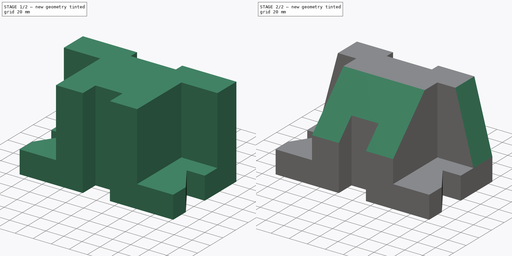
[diagram: build sequence overview — one tinted view per stage of 2, left to right]
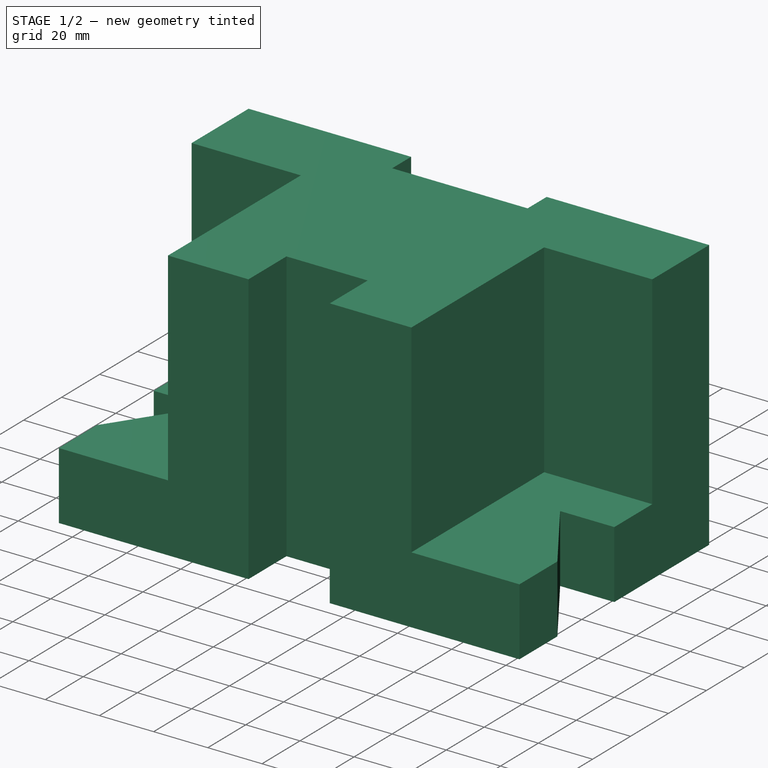
[diagram: stage 1 of 2 — iso view after this stage's code; geometry added in this stage tinted green]
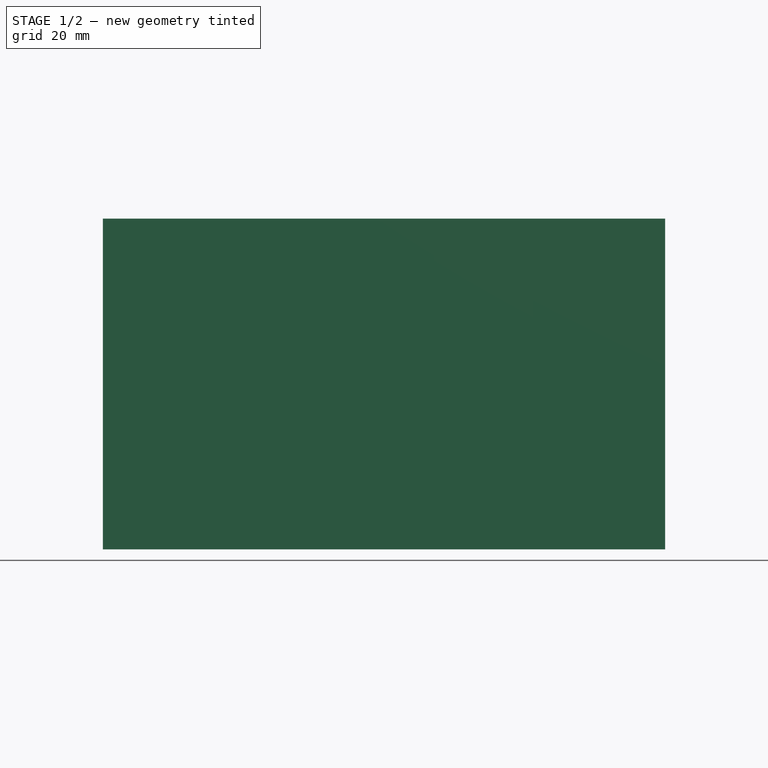
[diagram: stage 1 of 2 — front view after this stage's code; geometry added in this stage tinted green]
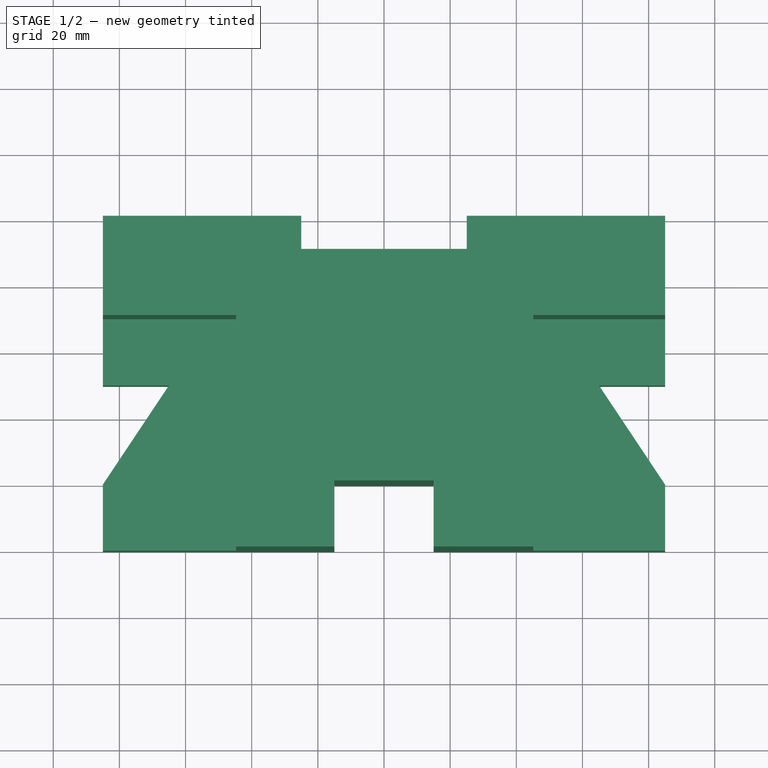
[diagram: stage 1 of 2 — top view after this stage's code; geometry added in this stage tinted green]
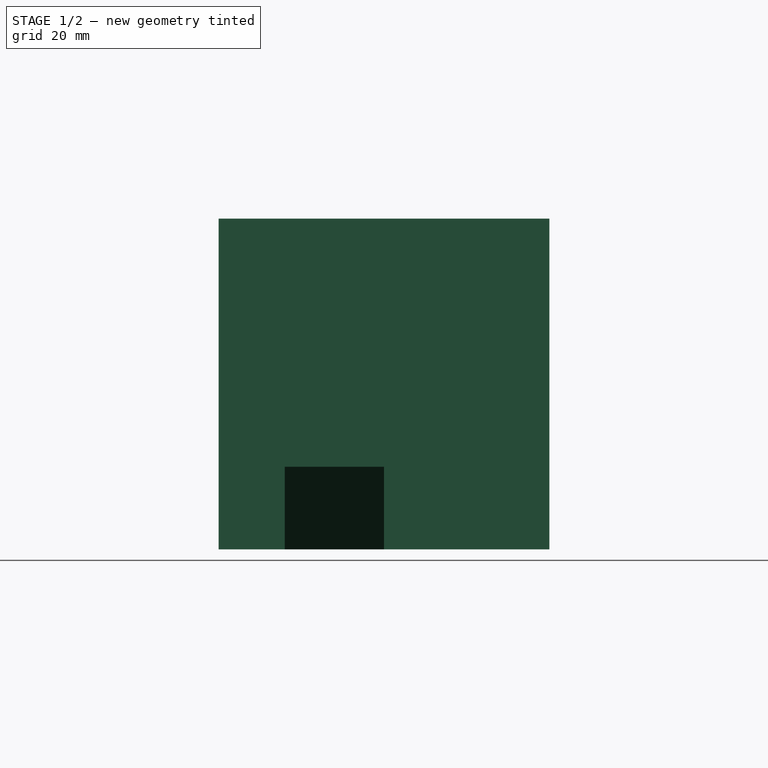
[diagram: stage 1 of 2 — right view after this stage's code; geometry added in this stage tinted green]
FCSTD DOCUMENT  (FreeCAD 0.16R)
Label: Ejer final 17
License: All rights reserved
LicenseURL: http://en.wikipedia.org/wiki/All_rights_reserved
objects: Sketcher::SketchObject×5, PartDesign::Pocket×3, PartDesign::Pad×1
note: 13 computed .brp shape members not serialized (recipe doc carries the construction recipe); baked Part::Feature solids carry a one-line shape summary decoded from their .brp

FEATURE [Sketcher::SketchObject] Sketch
  sketch-geometry (18):
    g0: LineSegment StartX=-85 StartY=0 StartZ=0 EndX=-25 EndY=0 EndZ=0
    g1: LineSegment StartX=-25 StartY=0 StartZ=0 EndX=-25 EndY=-10 EndZ=0
    g2: LineSegment StartX=-25 StartY=-10 StartZ=0 EndX=25 EndY=-10 EndZ=0
    g3: LineSegment StartX=25 StartY=-10 StartZ=0 EndX=25 EndY=0 EndZ=0
    g4: LineSegment StartX=25 StartY=0 StartZ=0 EndX=85 EndY=0 EndZ=0
    g5: LineSegment StartX=85 StartY=0 StartZ=0 EndX=85 EndY=-50 EndZ=0
    g6: LineSegment StartX=85 StartY=-50 StartZ=0 EndX=65 EndY=-50 EndZ=0
    g7: LineSegment StartX=65 StartY=-50 StartZ=0 EndX=85 EndY=-80 EndZ=0
    g8: LineSegment StartX=85 StartY=-80 StartZ=0 EndX=85 EndY=-100 EndZ=0
    g9: LineSegment StartX=85 StartY=-100 StartZ=0 EndX=15 EndY=-100 EndZ=0
    g10: LineSegment StartX=15 StartY=-100 StartZ=0 EndX=15 EndY=-80 EndZ=0
    g11: LineSegment StartX=15 StartY=-80 StartZ=0 EndX=-15 EndY=-80 EndZ=0
    g12: LineSegment StartX=-15 StartY=-80 StartZ=0 EndX=-15 EndY=-100 EndZ=0
    g13: LineSegment StartX=-15 StartY=-100 StartZ=0 EndX=-85 EndY=-100 EndZ=0
    g14: LineSegment StartX=-85 StartY=-100 StartZ=0 EndX=-85 EndY=-80 EndZ=0
    g15: LineSegment StartX=-85 StartY=-80 StartZ=0 EndX=-65 EndY=-50 EndZ=0
    g16: LineSegment StartX=-65 StartY=-50 StartZ=0 EndX=-85 EndY=-50 EndZ=0
    g17: LineSegment StartX=-85 StartY=-50 StartZ=0 EndX=-85 EndY=0 EndZ=0
  constraints (53):
    c: PointOnObject(g0,g-1)
    c: Horizontal(g0)
    c: Coincident(g0,g1)
    c: Vertical(g1)
    c: Coincident(g1,g2)
    c: Horizontal(g2)
    c: Coincident(g2,g3)
    c: PointOnObject(g3,g-1)
    c: Coincident(g3,g4)
    c: Horizontal(g4)
    c: Coincident(g4,g5)
    c: Vertical(g5)
    c: Coincident(g5,g6)
    c: Horizontal(g6)
    c: Coincident(g6,g7)
    c: Coincident(g7,g8)
    c: Coincident(g8,g9)
    c: Horizontal(g9)
    c: Coincident(g9,g10)
    c: Vertical(g10)
    c: Coincident(g10,g11)
    c: Horizontal(g11)
    c: Coincident(g11,g12)
    c: Vertical(g12)
    c: Coincident(g12,g13)
    c: Horizontal(g13)
    c: Coincident(g13,g14)
    c: Vertical(g14)
    c: Coincident(g14,g15)
    c: Coincident(g15,g16)
    c: Horizontal(g16)
    c: Coincident(g16,g17)
    c: Coincident(g17,g0)
    c: Vertical(g17)
    c: DistanceX(g13,g13) = 70
    c: DistanceX(g9,g9) = 70
    c: DistanceX(g11,g11) = 30
    c: DistanceY(g10,g10) = 20
    c: DistanceY(g14,g14) = 20
    c: Vertical(g8)
    c: DistanceY(g8,g8) = 20
    c: DistanceX(g16,g16) = 20
    c: DistanceX(g6,g6) = 20
    c: DistanceY(g14,g16) = 30
    c: DistanceY(g7,g5) = 30
    c: DistanceY(g17,g17) = 50
    c: DistanceX(g0,g0) = 60
    c: DistanceX(g4,g4) = 60
    c: DistanceX(g2,g2) = 50
    c: DistanceY(g3,g3) = 10
    c: Symmetric(g13,g8,g-2)
    c: Symmetric(g16,g5,g-2)
    c: Vertical(g3)
FEATURE [PartDesign::Pad] Pad
  Length = 100
  Length2 = 100
  Sketch = -> Sketch
  Type = 0
FEATURE [Sketcher::SketchObject] Sketch001
  Placement = pos=(0,0,100) rot=(0,0,1;0rad)
  Support = -> Pad [Face20]
FEATURE [Sketcher::SketchObject] Sketch002
  ExternalGeometry = -> [Pad]
  Placement = pos=(0,0,100) rot=(0,0,1;0rad)
  Support = -> Pad [Face20]
  sketch-geometry (12):
    g0: LineSegment [constr] StartX=-14.7042 StartY=-100 StartZ=0 EndX=-44.7042 EndY=-100 EndZ=0
    g1: LineSegment [constr] StartX=15.1044 StartY=-100 StartZ=0 EndX=45.1044 EndY=-100 EndZ=0
    g2: LineSegment [constr] StartX=85 StartY=0 StartZ=0 EndX=85 EndY=-30 EndZ=0
    g3: LineSegment [constr] StartX=-85 StartY=0 StartZ=0 EndX=-85 EndY=-30 EndZ=0
    g4: LineSegment StartX=45.1044 StartY=-124.726 StartZ=0 EndX=106.617 EndY=-124.726 EndZ=0
    g5: LineSegment StartX=106.617 StartY=-124.726 StartZ=0 EndX=106.617 EndY=-30 EndZ=0
    g6: LineSegment StartX=106.617 StartY=-30 StartZ=0 EndX=45.1044 EndY=-30 EndZ=0
    g7: LineSegment StartX=45.1044 StartY=-30 StartZ=0 EndX=45.1044 EndY=-124.726 EndZ=0
    g8: LineSegment StartX=-44.7042 StartY=-121.374 StartZ=0 EndX=-96.2217 EndY=-121.374 EndZ=0
    g9: LineSegment StartX=-96.2217 StartY=-121.374 StartZ=0 EndX=-96.2217 EndY=-30 EndZ=0
    g10: LineSegment StartX=-96.2217 StartY=-30 StartZ=0 EndX=-44.7042 EndY=-30 EndZ=0
    g11: LineSegment StartX=-44.7042 StartY=-30 StartZ=0 EndX=-44.7042 EndY=-121.374 EndZ=0
  constraints (29):
    c: Horizontal(g1)
    c: DistanceX(g1,g1) = 30
    c: DistanceX(g0,g0) = 30
    c: Coincident(g2,g-4)
    c: Vertical(g2)
    c: Coincident(g3,g-3)
    c: Vertical(g3)
    c: DistanceY(g3,g3) = 30
    c: DistanceY(g2,g2) = 30
    c: Coincident(g4,g5)
    c: Coincident(g5,g6)
    c: Coincident(g6,g7)
    c: Coincident(g7,g4)
    c: Horizontal(g4)
    c: Horizontal(g6)
    c: Vertical(g5)
    c: Vertical(g7)
    c: Coincident(g8,g9)
    c: Coincident(g9,g10)
    c: Coincident(g10,g11)
    c: Coincident(g11,g8)
    c: Horizontal(g8)
    c: Horizontal(g10)
    c: Vertical(g9)
    c: Vertical(g11)
    c: PointOnObject(g3,g10)
    c: PointOnObject(g0,g11)
    c: PointOnObject(g2,g6)
    c: PointOnObject(g1,g7)
FEATURE [PartDesign::Pocket] Pocket
  Length = 75
  Sketch = -> Sketch002
  Type = 0
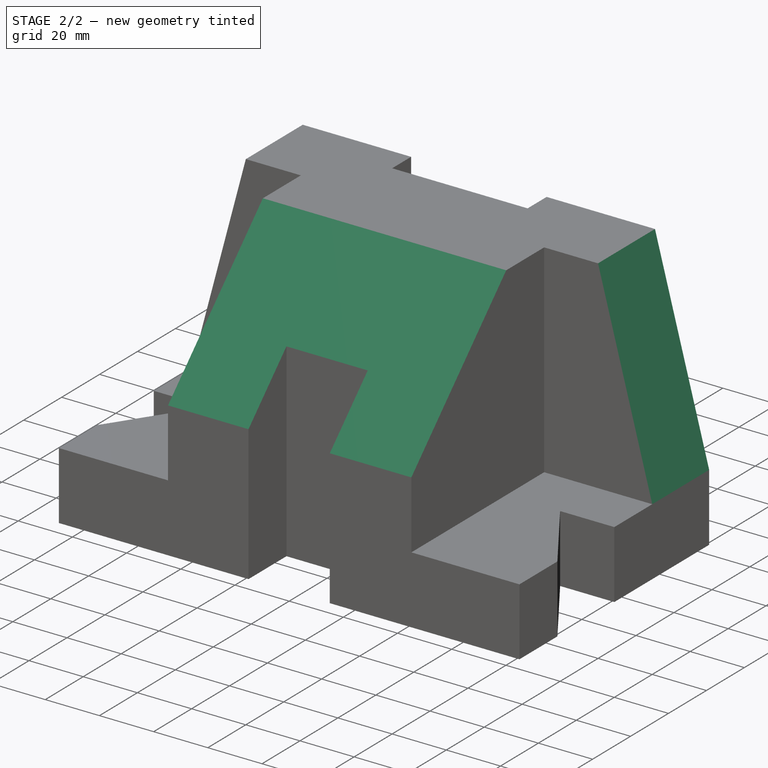
[diagram: stage 2 of 2 — iso view after this stage's code; geometry added in this stage tinted green]
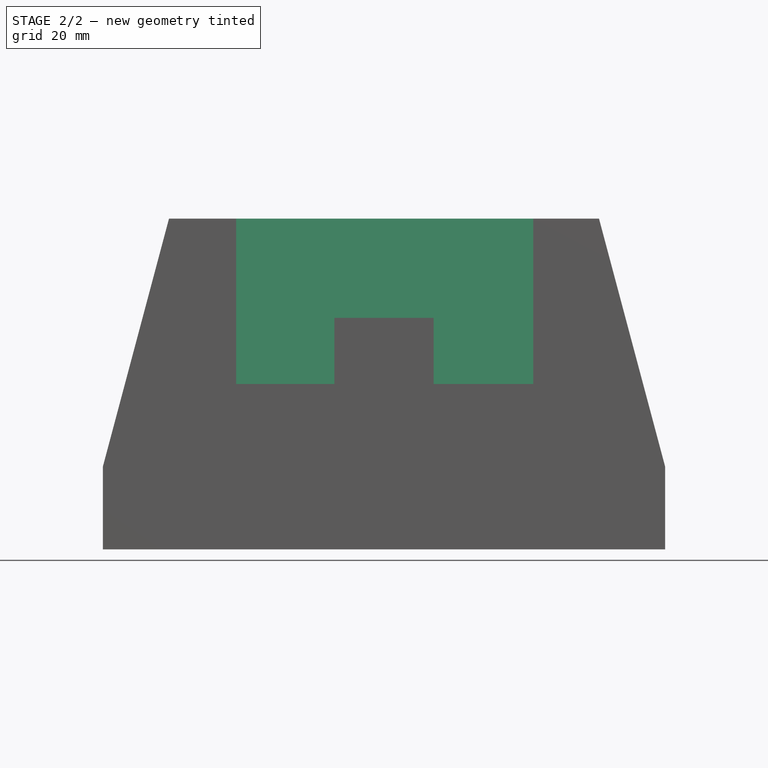
[diagram: stage 2 of 2 — front view after this stage's code; geometry added in this stage tinted green]
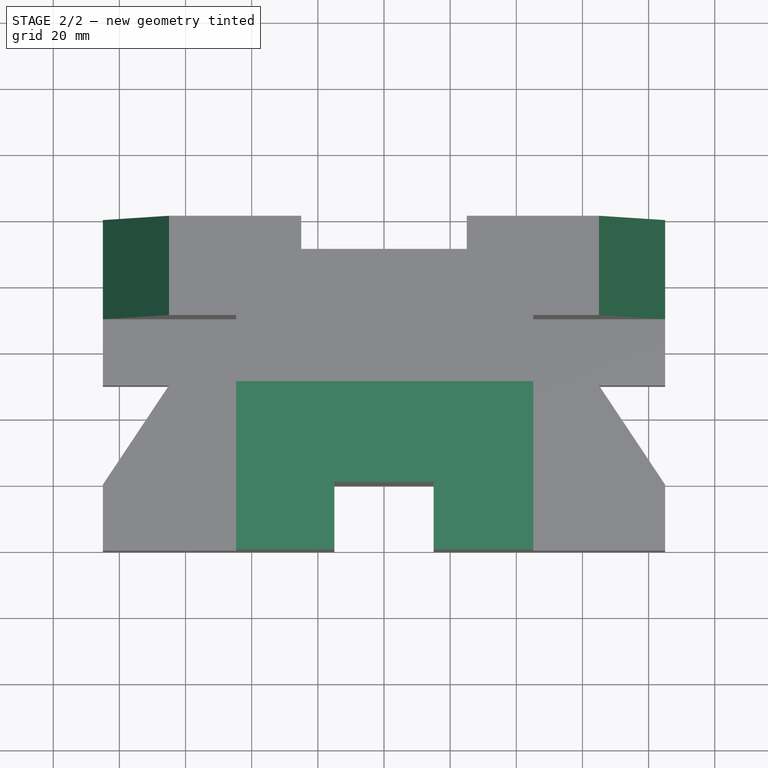
[diagram: stage 2 of 2 — top view after this stage's code; geometry added in this stage tinted green]
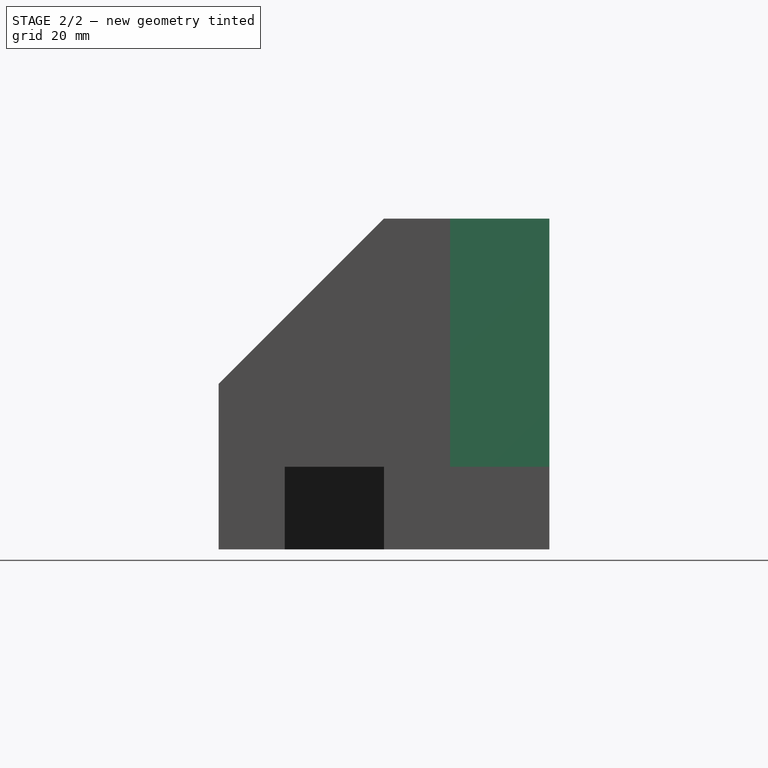
[diagram: stage 2 of 2 — right view after this stage's code; geometry added in this stage tinted green]
FEATURE [Sketcher::SketchObject] Sketch003
  Placement = pos=(-44.7042,0,0) rot=(0.57735,-0.57735,-0.57735;2.0944rad)
  Support = -> Pocket [Face25]
  sketch-geometry (3):
    g0: LineSegment StartX=100 StartY=100 StartZ=0 EndX=100 EndY=50 EndZ=0
    g1: LineSegment StartX=100 StartY=100 StartZ=0 EndX=50 EndY=100 EndZ=0
    g2: LineSegment StartX=100 StartY=50 StartZ=0 EndX=50 EndY=100 EndZ=0
  constraints (9):
    c: Vertical(g0)
    c: Coincident(g1,g0)
    c: Horizontal(g1)
    c: DistanceX(g1,g1) = 50
    c: DistanceX(g-1,g1) = 50
    c: DistanceY(g-1,g0) = 50
    c: Coincident(g2,g0)
    c: Coincident(g2,g1)
    c: DistanceY(g0,g0) = 50
FEATURE [PartDesign::Pocket] Pocket001
  Length = 5
  Sketch = -> Sketch003
  Type = 1
FEATURE [Sketcher::SketchObject] Sketch004
  Placement = pos=(0,-30,0) rot=(1,0,0;1.5708rad)
  Support = -> Pocket001 [Face23]
  sketch-geometry (6):
    g0: LineSegment StartX=-85 StartY=100 StartZ=0 EndX=-65 EndY=100 EndZ=0
    g1: LineSegment StartX=-85 StartY=100 StartZ=0 EndX=-85 EndY=25 EndZ=0
    g2: LineSegment StartX=85 StartY=100 StartZ=0 EndX=65 EndY=100 EndZ=0
    g3: LineSegment StartX=85 StartY=100 StartZ=0 EndX=85 EndY=25 EndZ=0
    g4: LineSegment StartX=-65 StartY=100 StartZ=0 EndX=-85 EndY=25 EndZ=0
    g5: LineSegment StartX=65 StartY=100 StartZ=0 EndX=85 EndY=25 EndZ=0
  constraints (18):
    c: Horizontal(g0)
    c: Coincident(g1,g0)
    c: Vertical(g1)
    c: Horizontal(g2)
    c: Coincident(g3,g2)
    c: Vertical(g3)
    c: DistanceX(g0,g0) = 20
    c: DistanceX(g2,g2) = 20
    c: DistanceX(g-1,g2) = 85
    c: DistanceX(g0,g-1) = 85
    c: DistanceY(g-1,g1) = 25
    c: DistanceY(g-1,g3) = 25
    c: DistanceY(g-1,g0) = 100
    c: DistanceY(g-1,g2) = 100
    c: Coincident(g4,g0)
    c: Coincident(g4,g1)
    c: Coincident(g5,g2)
    c: Coincident(g5,g3)
FEATURE [PartDesign::Pocket] Pocket002
  Length = 5
  Sketch = -> Sketch004
  Type = 1
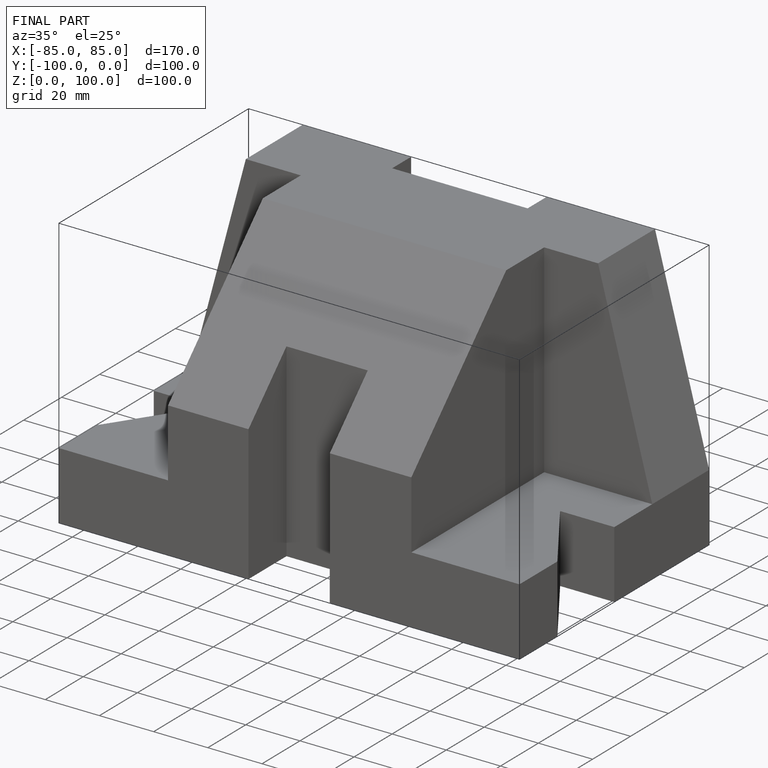
[diagram: finished part — iso view with bounding-box wireframe]
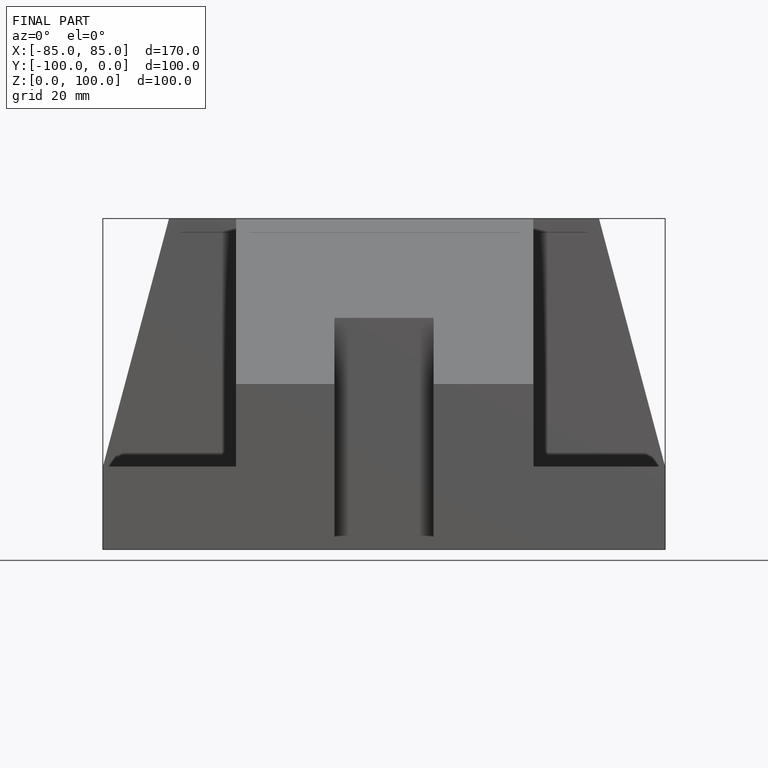
[diagram: finished part — front view with bounding-box wireframe]
